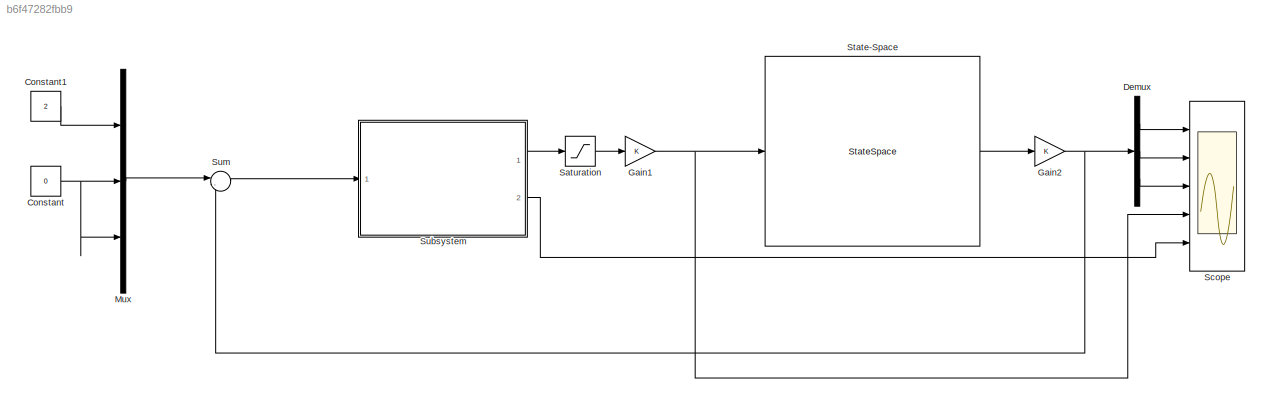
MODEL slx_b6f47282fbb9
KIND model
BLOCK [Constant] Constant
  Value = 0
BLOCK [Constant] Constant1
  Value = 2
BLOCK [Demux] Demux
  DisplayOption = bar
  Outputs = 3
  Ports = [1, 3]
BLOCK [Gain] Gain1
  OutDataTypeStr = Inherit: Inherit via internal rule
  ParamDataTypeStr = Inherit: Inherit via internal rule
  SampleTime = ExplicitRobustMPC_obj.Ts
  SaturateOnIntegerOverflow = off
BLOCK [Gain] Gain2
  OutDataTypeStr = Inherit: Inherit via internal rule
  ParamDataTypeStr = Inherit: Inherit via internal rule
  SampleTime = ExplicitRobustMPC_obj.Ts
  SaturateOnIntegerOverflow = off
BLOCK [Mux] Mux
  DisplayOption = bar
  Inputs = 3
  Ports = [3, 1]
BLOCK [Saturate] Saturation
  InputPortMap = u0
  LowerLimit = U_x_bounds(1)
  Ports = [1, 1]
  UpperLimit = U_x_bounds(2)
BLOCK [Scope] Scope
  DataFormat = StructureWithTime
  Floating = off
  NumInputPorts = 5
  Ports = [5]
  SampleTime = 0
  ShowLegends = off
  YMax = -0.1275~0.109~0.016~5~5
  YMin = -0.1525~0.1055~0.011~-5~-5
BLOCK [StateSpace] State-Space
  A = add_usys_d.continuous.matrices.A
  B = add_usys_d.continuous.matrices.B
  C = add_usys_d.continuous.matrices.C
  D = add_usys_d.continuous.matrices.D
  X0 = [1 0 0]
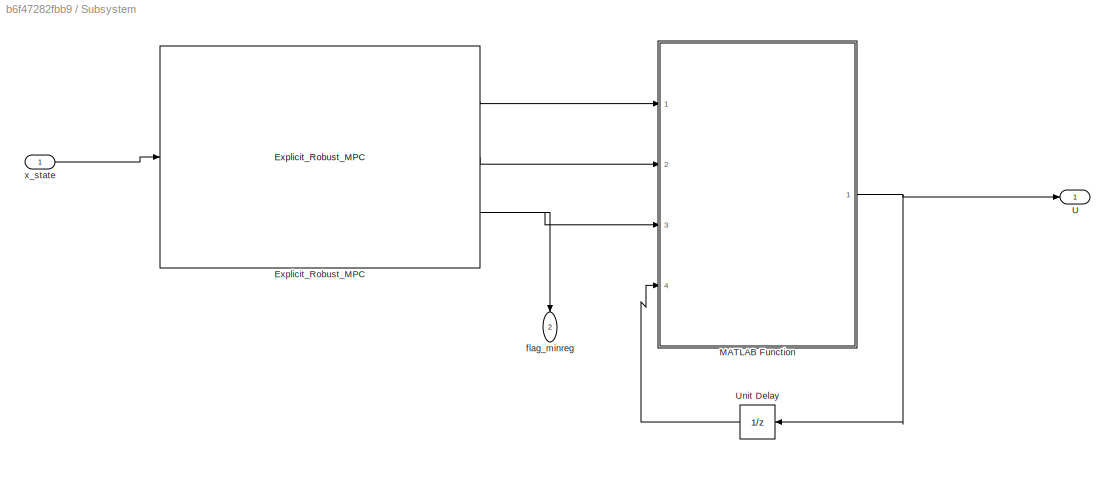
BLOCK [SubSystem] Subsystem
  FunctionWithSeparateData = off
  MaskHideContents = off
  MinAlgLoopOccurrences = off
  Opaque = off
  Ports = [1, 2]
  PropExecContextOutsideSubsystem = off
  RTWSystemCode = Auto
  RequestExecContextInheritance = off
BLOCK [Reference] Subsystem/Explicit_Robust_MPC  REF=Robust_MPC_Library/Explicit_Robust_MPC
  F = ExplicitRobustMPC_obj.F
  G = ExplicitRobustMPC_obj.G
  H = ExplicitRobustMPC_obj.H
  Hi_init = zeros(100,ExplicitRobustMPC_obj.Nx)
  K = ExplicitRobustMPC_obj.K
  Ki_init = zeros(100,ExplicitRobustMPC_obj.Nu)
  Nc = ExplicitRobustMPC_obj.Nc
  Nx = ExplicitRobustMPC_obj.Nx
  Ports = [1, 3]
  SourceBlock = Robust_MPC_Library/Explicit_Robust_MPC
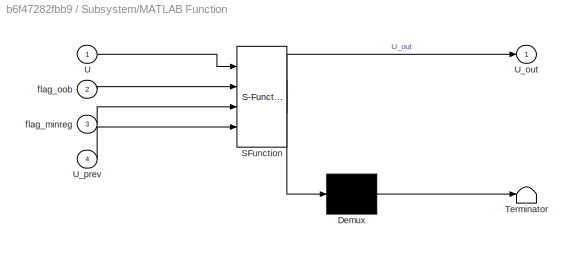
BLOCK [SubSystem] Subsystem/MATLAB Function
  ErrorFcn = Stateflow.Translate.translate
  FunctionWithSeparateData = off
  MaskHideContents = off
  MinAlgLoopOccurrences = off
  Opaque = off
  PermitHierarchicalResolution = ExplicitOnly
  Ports = [4, 1]
  PropExecContextOutsideSubsystem = off
  RTWSystemCode = Auto
  RequestExecContextInheritance = off
  SFBlockType = MATLAB Function
  TreatAsAtomicUnit = on
BLOCK [Demux] Subsystem/MATLAB Function/ Demux 
  Outputs = 1
  Ports = [1, 1]
BLOCK [S-Function] Subsystem/MATLAB Function/ SFunction 
  EnableBusSupport = on
  FunctionName = sf_sfun
  PortCounts = [4 2]
  Ports = [4, 2]
  Tag = Stateflow S-Function some_testing 2
BLOCK [Terminator] Subsystem/MATLAB Function/ Terminator 
BLOCK [Inport] Subsystem/MATLAB Function/U
  IconDisplay = Port number
BLOCK [Outport] Subsystem/MATLAB Function/U_out
  IconDisplay = Port number
BLOCK [Inport] Subsystem/MATLAB Function/U_prev
  IconDisplay = Port number
  Port = 4
BLOCK [Inport] Subsystem/MATLAB Function/flag_minreg
  IconDisplay = Port number
  Port = 3
BLOCK [Inport] Subsystem/MATLAB Function/flag_oob
  IconDisplay = Port number
  Port = 2
BLOCK [Outport] Subsystem/U
  IconDisplay = Port number
BLOCK [UnitDelay] Subsystem/Unit Delay
  InputProcessing = Elements as channels (sample based)
  SampleTime = -1
BLOCK [Outport] Subsystem/flag_minreg
  IconDisplay = Port number
  Port = 2
BLOCK [Inport] Subsystem/x_state
  IconDisplay = Port number
BLOCK [Sum] Sum
  IconShape = round
  InputSameDT = off
  Inputs = |-+
  OutDataTypeStr = Inherit: Inherit via internal rule
  Ports = [2, 1]
  SaturateOnIntegerOverflow = off
LINE Constant1:1 -> Mux:1
NET Constant:1 -> Mux:2, Mux:3
LINE Demux:1 -> Scope:1
LINE Demux:2 -> Scope:2
LINE Demux:3 -> Scope:3
NET Gain1:1 -> Scope:4, State-Space:1
NET Gain2:1 -> Demux:1, Sum:2
LINE Mux:1 -> Sum:1
LINE Saturation:1 -> Gain1:1
LINE State-Space:1 -> Gain2:1
LINE Subsystem/Explicit_Robust_MPC:1 -> Subsystem/MATLAB Function:1
LINE Subsystem/Explicit_Robust_MPC:2 -> Subsystem/MATLAB Function:2
NET Subsystem/Explicit_Robust_MPC:3 -> Subsystem/MATLAB Function:3, Subsystem/flag_minreg:1
NET Subsystem/MATLAB Function:1 -> Subsystem/U:1, Subsystem/Unit Delay:1
LINE Subsystem/Unit Delay:1 -> Subsystem/MATLAB Function:4
LINE Subsystem/x_state:1 -> Subsystem/Explicit_Robust_MPC:1
LINE Subsystem:1 -> Saturation:1
LINE Subsystem:2 -> Scope:5
LINE Sum:1 -> Subsystem:1
note: NET lines group one-source signal fan-out (src -> all destinations, sorted); 1:1 wires keep LINE
